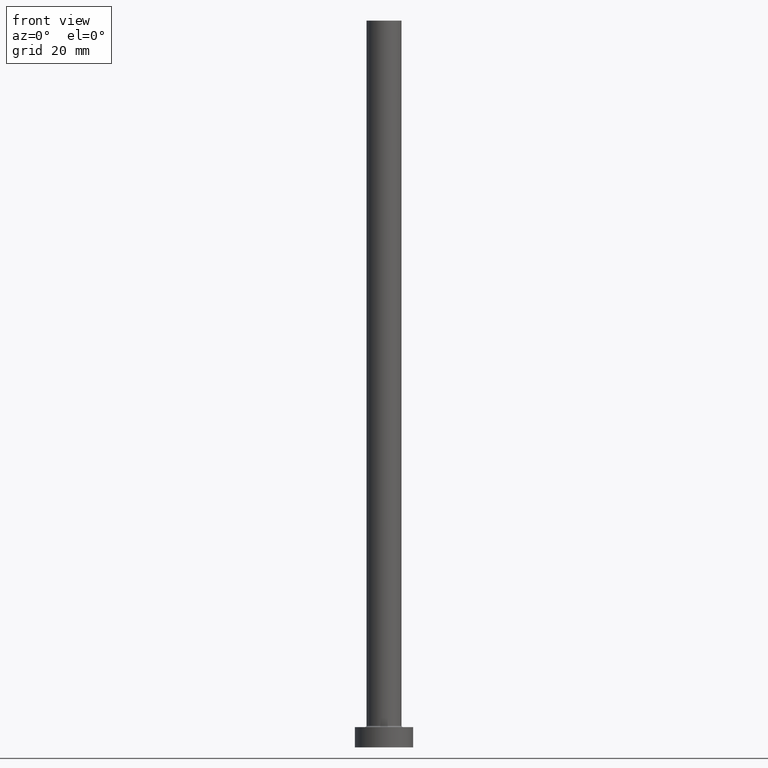
[diagram: clean part render]
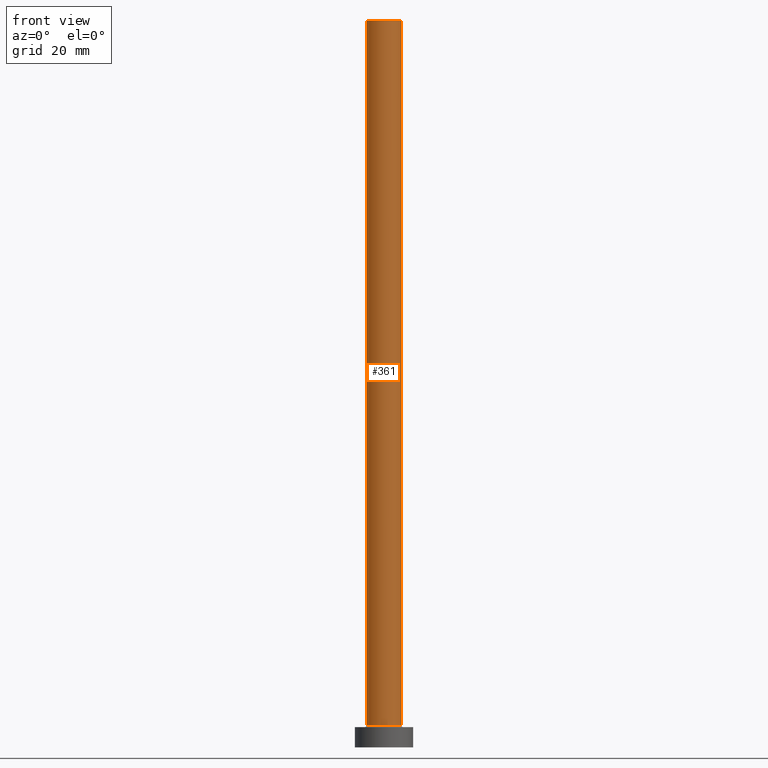
[diagram: same view with one face highlighted and labeled with its STEP entity id]
A machine part, front view. The second image highlights one B-rep face of the part: STEP entity #361.
In plain terms, the highlighted cylindrical surface (edge-blend (fillet) strip) has radius 6 mm, axis along (-0, -0, -1).
Its self-contained STEP definition (entity closure, byte-faithful):
#2 = AXIS2_PLACEMENT_3D ( 'NONE', #52, #440, #335 ) ;
#7 = AXIS2_PLACEMENT_3D ( 'NONE', #231, #12, #154 ) ;
#12 = DIRECTION ( 'NONE',  ( -0.000000000000000000, -0.000000000000000000, -1.000000000000000000 ) ) ;
#34 = EDGE_LOOP ( 'NONE', ( #204, #193, #274, #443 ) ) ;
#36 = CIRCLE ( 'NONE', #281, 6.000000000000000888 ) ;
#52 = CARTESIAN_POINT ( 'NONE',  ( 0.000000000000000000, 0.000000000000000000, 7.500000000000007105 ) ) ;
#62 = VERTEX_POINT ( 'NONE', #340 ) ;
#76 = EDGE_CURVE ( 'NONE', #420, #233, #345, .T. ) ;
#86 = CARTESIAN_POINT ( 'NONE',  ( -6.000000000000000888, 0.000000000000000000, 7.500000000000007105 ) ) ;
#154 = DIRECTION ( 'NONE',  ( -1.000000000000000000, 0.000000000000000000, 0.000000000000000000 ) ) ;
#155 = VECTOR ( 'NONE', #416, 1000.000000000000000 ) ;
#169 = FACE_OUTER_BOUND ( 'NONE', #34, .T. ) ;
#182 = EDGE_CURVE ( 'NONE', #341, #420, #280, .T. ) ;
#183 = CARTESIAN_POINT ( 'NONE',  ( -6.000000000000000888, 0.000000000000000000, 250.0000000000000000 ) ) ;
#189 = VECTOR ( 'NONE', #403, 1000.000000000000000 ) ;
#193 = ORIENTED_EDGE ( 'NONE', *, *, #249, .F. ) ;
#204 = ORIENTED_EDGE ( 'NONE', *, *, #226, .F. ) ;
#220 = CARTESIAN_POINT ( 'NONE',  ( 6.000000000000000888, 7.347880794884120722E-16, 250.0000000000000000 ) ) ;
#226 = EDGE_CURVE ( 'NONE', #62, #233, #372, .T. ) ;
#231 = CARTESIAN_POINT ( 'NONE',  ( 0.000000000000000000, 0.000000000000000000, 250.0000000000000000 ) ) ;
#233 = VERTEX_POINT ( 'NONE', #406 ) ;
#249 = EDGE_CURVE ( 'NONE', #341, #62, #36, .T. ) ;
#262 = CARTESIAN_POINT ( 'NONE',  ( 0.000000000000000000, 0.000000000000000000, 250.0000000000000000 ) ) ;
#274 = ORIENTED_EDGE ( 'NONE', *, *, #182, .T. ) ;
#280 = LINE ( 'NONE', #183, #189 ) ;
#281 = AXIS2_PLACEMENT_3D ( 'NONE', #262, #450, #297 ) ;
#297 = DIRECTION ( 'NONE',  ( 1.000000000000000000, 0.000000000000000000, 0.000000000000000000 ) ) ;
#335 = DIRECTION ( 'NONE',  ( 1.000000000000000000, 0.000000000000000000, 0.000000000000000000 ) ) ;
#340 = CARTESIAN_POINT ( 'NONE',  ( 6.000000000000000888, 7.347880794884120722E-16, 250.0000000000000000 ) ) ;
#341 = VERTEX_POINT ( 'NONE', #368 ) ;
#345 = CIRCLE ( 'NONE', #2, 6.000000000000000888 ) ;
#361 = ADVANCED_FACE ( 'NONE', ( #169 ), #454, .T. ) ;
#368 = CARTESIAN_POINT ( 'NONE',  ( -6.000000000000000888, 0.000000000000000000, 250.0000000000000000 ) ) ;
#372 = LINE ( 'NONE', #220, #155 ) ;
#403 = DIRECTION ( 'NONE',  ( -0.000000000000000000, -0.000000000000000000, -1.000000000000000000 ) ) ;
#406 = CARTESIAN_POINT ( 'NONE',  ( 6.000000000000000888, 7.347880794884120722E-16, 7.500000000000007105 ) ) ;
#416 = DIRECTION ( 'NONE',  ( -0.000000000000000000, -0.000000000000000000, -1.000000000000000000 ) ) ;
#420 = VERTEX_POINT ( 'NONE', #86 ) ;
#440 = DIRECTION ( 'NONE',  ( 0.000000000000000000, 0.000000000000000000, 1.000000000000000000 ) ) ;
#443 = ORIENTED_EDGE ( 'NONE', *, *, #76, .T. ) ;
#450 = DIRECTION ( 'NONE',  ( 0.000000000000000000, 0.000000000000000000, 1.000000000000000000 ) ) ;
#454 = CYLINDRICAL_SURFACE ( 'NONE', #7, 6.000000000000000888 ) ;